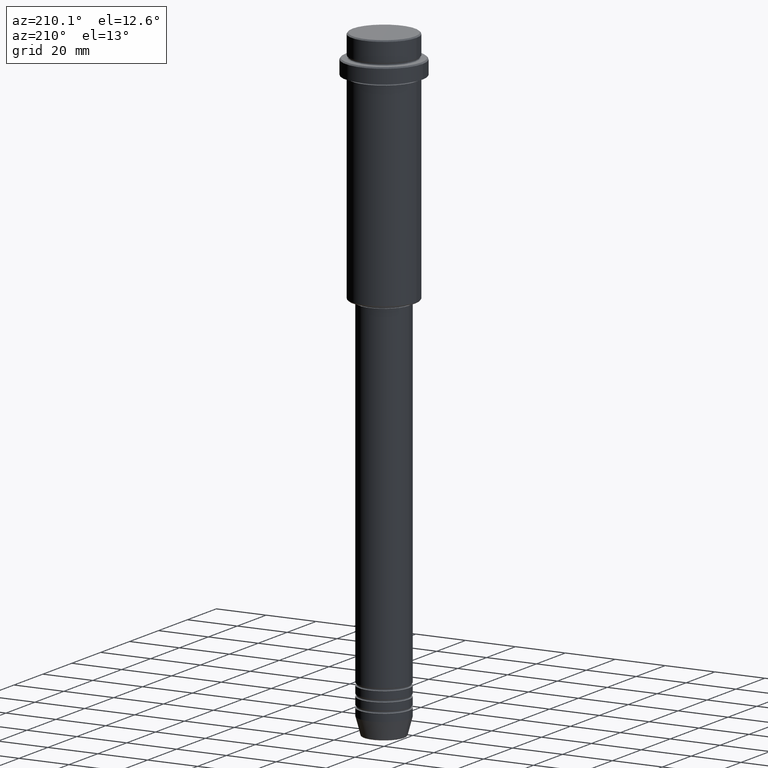
[diagram: clean part render]
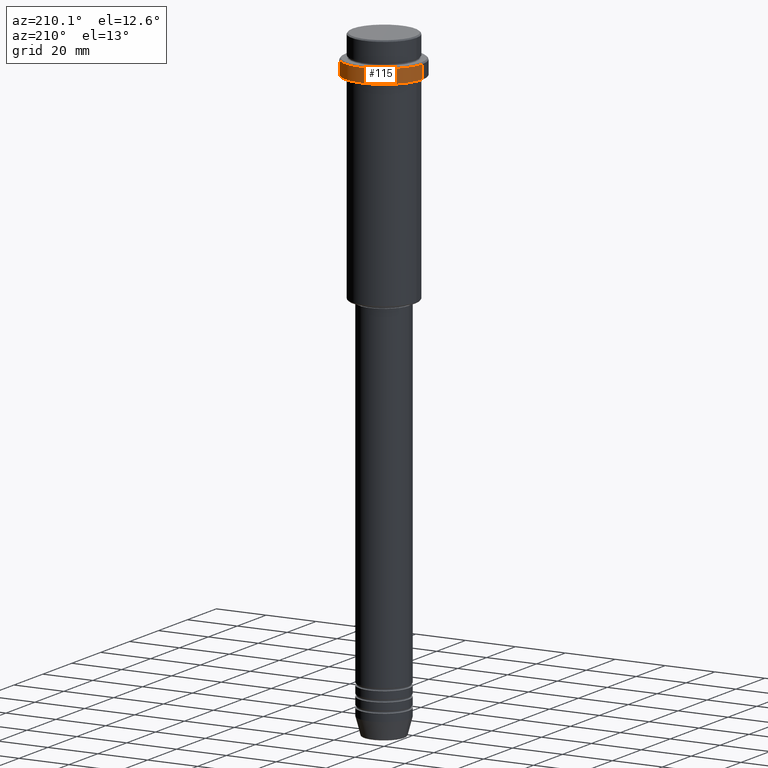
[diagram: same view with one face highlighted and labeled with its STEP entity id]
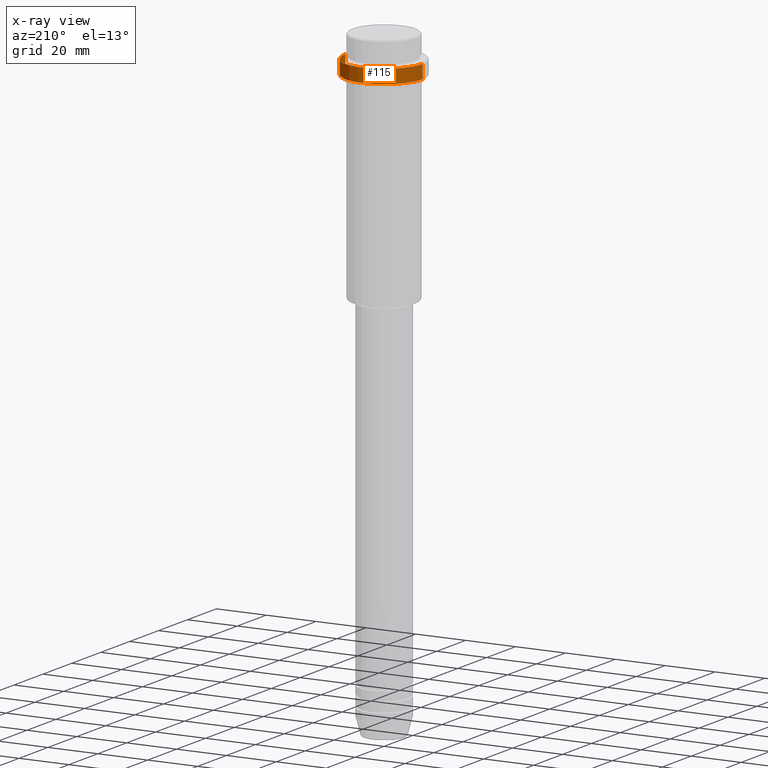
[diagram: x-ray of the same camera — body ghosted, the highlighted face saturated]
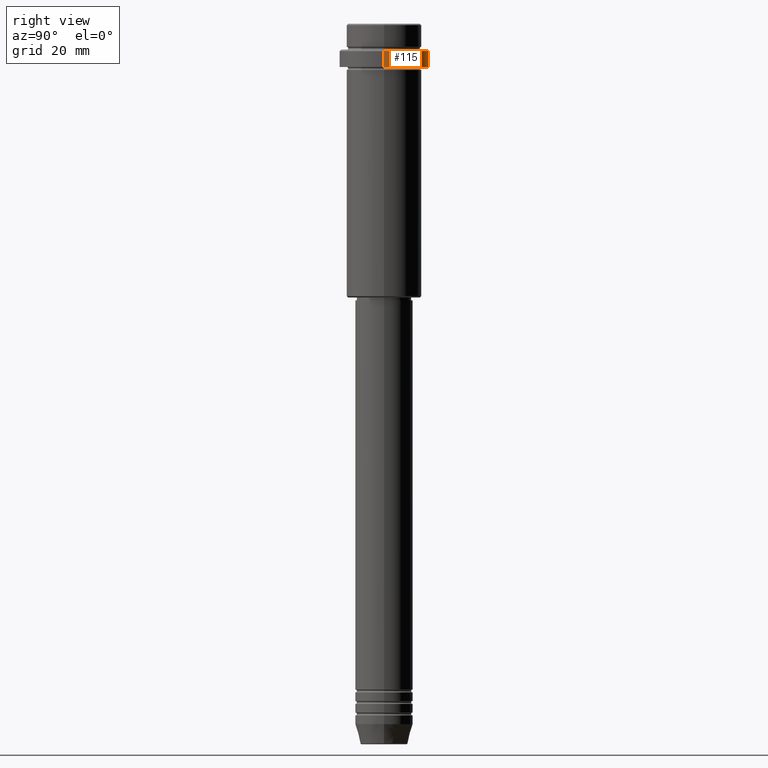
[diagram: same view with one face highlighted and labeled with its STEP entity id]
A machine part, auxiliary view. The second image highlights one B-rep face of the part: STEP entity #115.
The next image is the same camera in x-ray: the body ghosted, the highlighted face saturated — about 0% of this face is hidden behind the body in this view.
A second angle (right view) of the same face is appended — the face is thin or edge-on in the first view.
In plain terms, the highlighted cylindrical surface (partial cylindrical patch) has radius 15.5 mm, axis along (-0, -0, 1).
Its self-contained STEP definition (entity closure, byte-faithful):
#28 = VERTEX_POINT ( 'NONE', #77 ) ;
#77 = CARTESIAN_POINT ( 'NONE',  ( 15.50000000000000000, 0.000000000000000000, -9.499999999999957367 ) ) ;
#98 = ORIENTED_EDGE ( 'NONE', *, *, #1100, .F. ) ;
#110 = DIRECTION ( 'NONE',  ( -0.000000000000000000, -0.000000000000000000, 1.000000000000000000 ) ) ;
#115 = ADVANCED_FACE ( 'NONE', ( #1054 ), #1258, .T. ) ;
#146 = DIRECTION ( 'NONE',  ( 0.000000000000000000, 0.000000000000000000, -1.000000000000000000 ) ) ;
#175 = CARTESIAN_POINT ( 'NONE',  ( -15.50000000000000000, 1.898202538678397557E-15, -15.00000000000000178 ) ) ;
#208 = DIRECTION ( 'NONE',  ( 1.000000000000000000, 0.000000000000000000, 0.000000000000000000 ) ) ;
#296 = DIRECTION ( 'NONE',  ( -0.000000000000000000, -0.000000000000000000, 1.000000000000000000 ) ) ;
#335 = CARTESIAN_POINT ( 'NONE',  ( 0.000000000000000000, 0.000000000000000000, -15.00000000000000178 ) ) ;
#346 = ORIENTED_EDGE ( 'NONE', *, *, #1132, .T. ) ;
#384 = VERTEX_POINT ( 'NONE', #175 ) ;
#464 = CIRCLE ( 'NONE', #1060, 15.50000000000000000 ) ;
#480 = DIRECTION ( 'NONE',  ( 1.000000000000000000, 0.000000000000000000, 0.000000000000000000 ) ) ;
#481 = EDGE_LOOP ( 'NONE', ( #694, #346, #1119, #98 ) ) ;
#489 = CARTESIAN_POINT ( 'NONE',  ( -15.50000000000000000, 1.898202538678397557E-15, -9.499999999999957367 ) ) ;
#492 = DIRECTION ( 'NONE',  ( -0.000000000000000000, -0.000000000000000000, 1.000000000000000000 ) ) ;
#511 = AXIS2_PLACEMENT_3D ( 'NONE', #1275, #296, #208 ) ;
#525 = CARTESIAN_POINT ( 'NONE',  ( -15.50000000000000000, 1.898202538678397557E-15, 0.000000000000000000 ) ) ;
#641 = EDGE_CURVE ( 'NONE', #684, #28, #464, .T. ) ;
#684 = VERTEX_POINT ( 'NONE', #489 ) ;
#694 = ORIENTED_EDGE ( 'NONE', *, *, #1248, .T. ) ;
#749 = LINE ( 'NONE', #823, #1038 ) ;
#763 = VECTOR ( 'NONE', #492, 1000.000000000000000 ) ;
#801 = VERTEX_POINT ( 'NONE', #1402 ) ;
#823 = CARTESIAN_POINT ( 'NONE',  ( 15.50000000000000000, 0.000000000000000000, 0.000000000000000000 ) ) ;
#848 = DIRECTION ( 'NONE',  ( -0.000000000000000000, -0.000000000000000000, 1.000000000000000000 ) ) ;
#924 = AXIS2_PLACEMENT_3D ( 'NONE', #335, #110, #1304 ) ;
#934 = LINE ( 'NONE', #525, #763 ) ;
#993 = CIRCLE ( 'NONE', #924, 15.50000000000000000 ) ;
#1038 = VECTOR ( 'NONE', #848, 1000.000000000000000 ) ;
#1054 = FACE_OUTER_BOUND ( 'NONE', #481, .T. ) ;
#1060 = AXIS2_PLACEMENT_3D ( 'NONE', #1126, #146, #480 ) ;
#1100 = EDGE_CURVE ( 'NONE', #801, #28, #749, .T. ) ;
#1119 = ORIENTED_EDGE ( 'NONE', *, *, #641, .T. ) ;
#1126 = CARTESIAN_POINT ( 'NONE',  ( 0.000000000000000000, 0.000000000000000000, -9.499999999999957367 ) ) ;
#1132 = EDGE_CURVE ( 'NONE', #384, #684, #934, .T. ) ;
#1248 = EDGE_CURVE ( 'NONE', #801, #384, #993, .T. ) ;
#1258 = CYLINDRICAL_SURFACE ( 'NONE', #511, 15.50000000000000000 ) ;
#1275 = CARTESIAN_POINT ( 'NONE',  ( 0.000000000000000000, 0.000000000000000000, 0.000000000000000000 ) ) ;
#1304 = DIRECTION ( 'NONE',  ( 1.000000000000000000, 0.000000000000000000, 0.000000000000000000 ) ) ;
#1402 = CARTESIAN_POINT ( 'NONE',  ( 15.50000000000000000, 0.000000000000000000, -15.00000000000000178 ) ) ;